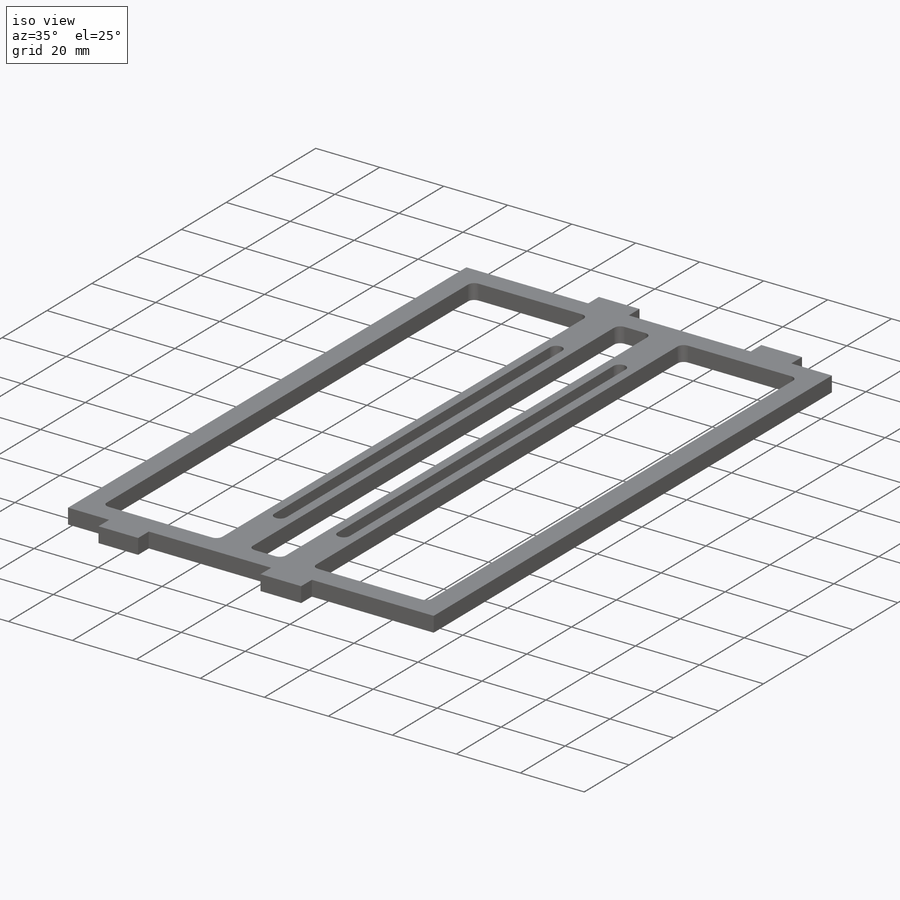
[diagram: iso view]
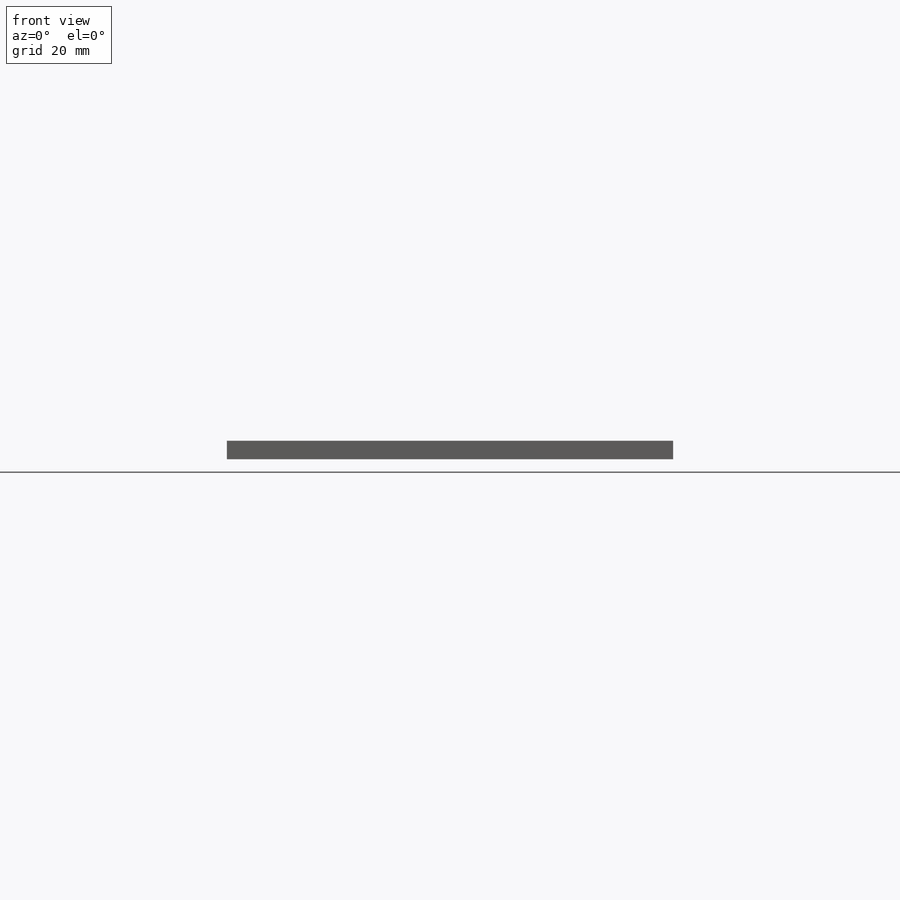
[diagram: front view]
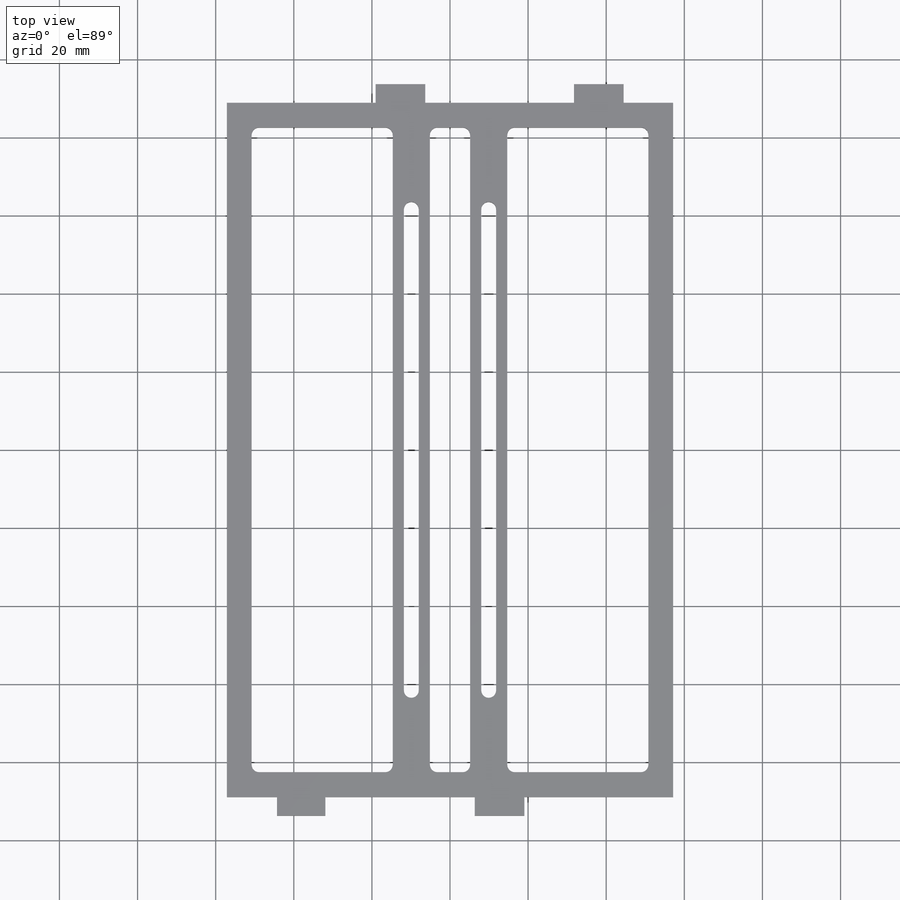
[diagram: top view]
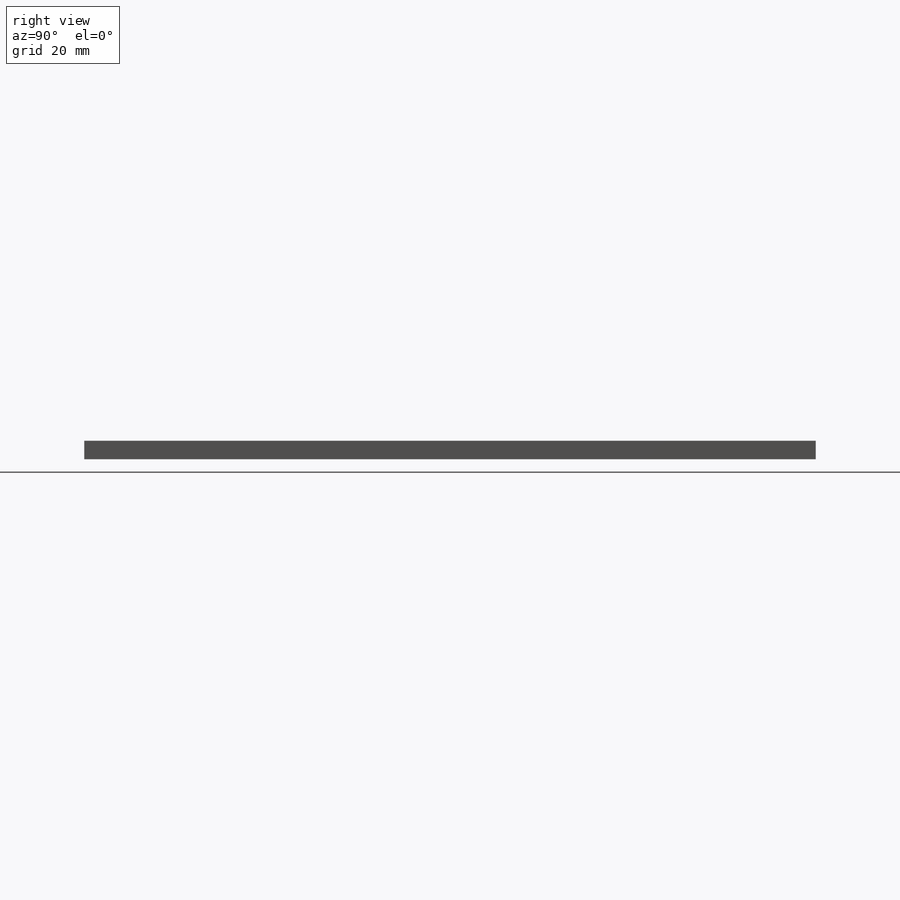
[diagram: right view]
SOLIDWORKS PART (.sldprt)
format: sldprt  version: not decoded by parser v0  size: 307,200 bytes
history: native  units: mm
features: sketch x4, extrude x4, material x1, fillet x1 (+11 scaffold rows collapsed)
feature tree (21):
  scaffold x11  (default folders/planes/origin — collapsed)
  material  "6061-T6 (SS)"
  sketch  "Sketch1"  dims[D1=114.3mm D2=177.8mm D3=6.35mm]
  extrude  "Boss-Extrude1"  Depth=4.7625mm
  sketch  "Sketch2"  dims[c1.D1=19.05mm c1.D2=50.8mm c1.D3=12.7mm c1.D4=4.7625mm c2.D4=90.0deg]
  extrude  "Boss-Extrude2"  Depth=4.7625mm
  sketch  "Sketch3"  dims[D1=12.7mm D2=12.7mm D3=19.05mm D4=50.8mm]
  extrude  "Boss-Extrude3"  Depth=4.7625mm
  sketch  "Sketch4"  dims[D1=9.525mm D2=9.525mm D3=9.906mm D4=9.906mm D5=127.0mm D6=3.81mm D7=127.0mm D8=3.81mm]
  extrude  "Boss-Extrude4"  Depth=4.7625mm
  fillet  "Fillet1"  Radius=1.905mm
decode coverage: 9 of 9 modeling features carry decoded parameters
note: suppression state not decoded; provenance and decode notes live in map.json
